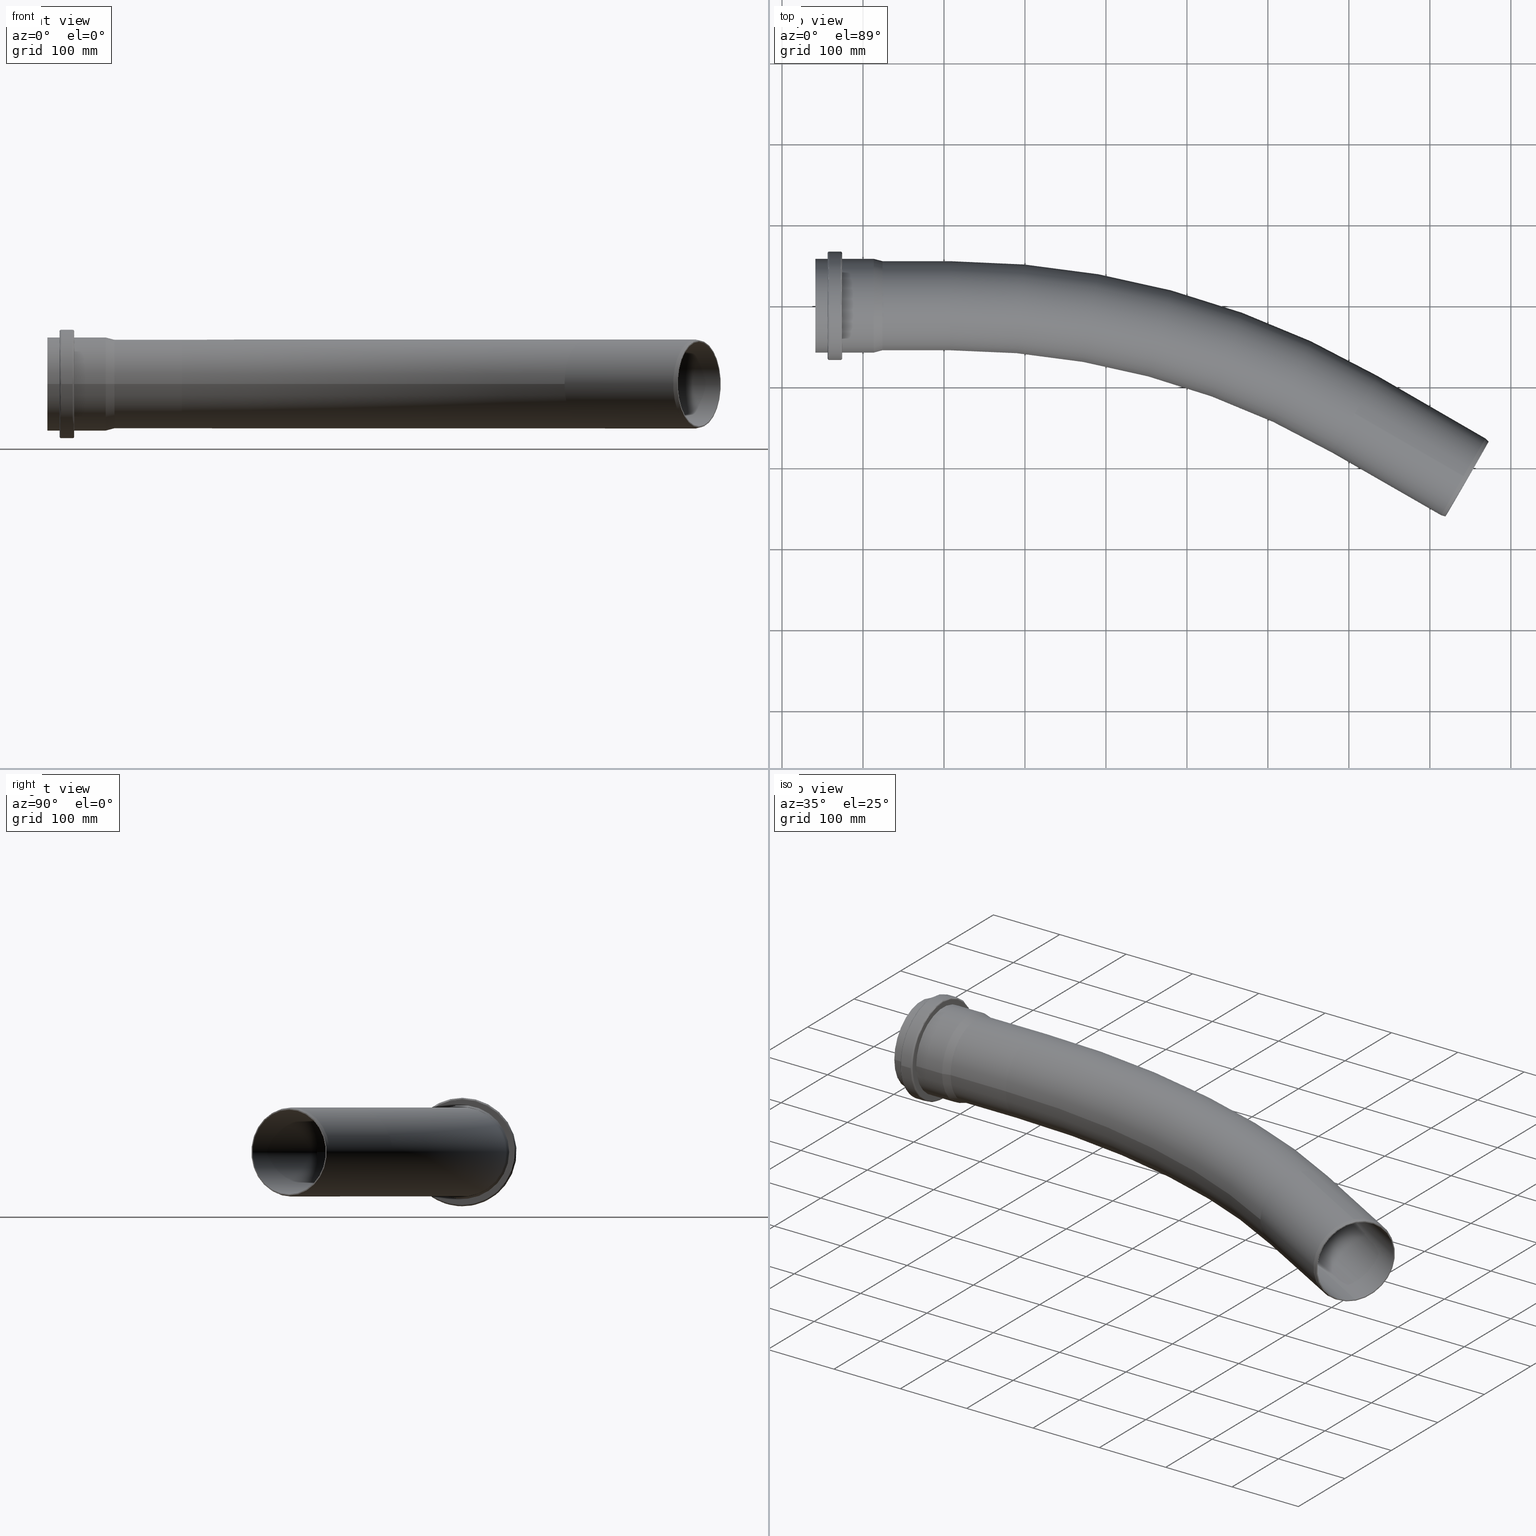
[diagram: canonical four-view strip — front | top / right | iso, engineering-drawing reading convention]
A machine part, canonical four-view strip (front | top / right | iso — engineering-drawing reading convention). The complete STEP part file that produces these views, byte-faithful:
ISO-10303-21;
HEADER;
/* Generated by software containing ST-Developer
 * from STEP Tools, Inc. (www.steptools.com) 
 */

FILE_DESCRIPTION(
/* description */ (''),
/* implementation_level */ '2;1');

FILE_NAME(
/* name */ '730320z.stp',
/* time_stamp */ '2023-08-23T12:34:18+02:00',
/* author */ ('corinna'),
/* organization */ (''),
/* preprocessor_version */ 'ST-DEVELOPER v20',
/* originating_system */ 'Autodesk Inventor 2024',
/* authorisation */ '');

FILE_SCHEMA (('AUTOMOTIVE_DESIGN { 1 0 10303 214 3 1 1 }'));
ENDSEC;

DATA;
#10=MECHANICAL_DESIGN_GEOMETRIC_PRESENTATION_REPRESENTATION('',(#13),#643);
#11=SHAPE_REPRESENTATION_RELATIONSHIP('SRR','None',#650,#12);
#12=ADVANCED_BREP_SHAPE_REPRESENTATION('',(#14),#642);
#13=STYLED_ITEM('',(#660),#14);
#14=MANIFOLD_SOLID_BREP('Volumenk\X\F6rper2',#340);
#15=TOROIDAL_SURFACE('',#375,1000.,52.3);
#16=TOROIDAL_SURFACE('',#378,1000.,55.);
#17=TOROIDAL_SURFACE('',#381,65.,2.);
#18=TOROIDAL_SURFACE('',#391,65.,2.);
#19=FACE_BOUND('',#67,.T.);
#20=FACE_BOUND('',#74,.T.);
#21=FACE_BOUND('',#77,.T.);
#22=FACE_BOUND('',#79,.T.);
#23=FACE_BOUND('',#82,.T.);
#24=FACE_BOUND('',#91,.T.);
#25=PLANE('',#370);
#26=PLANE('',#389);
#27=PLANE('',#394);
#28=PLANE('',#396);
#29=PLANE('',#401);
#30=PLANE('',#415);
#31=CYLINDRICAL_SURFACE('',#367,55.);
#32=CYLINDRICAL_SURFACE('',#372,52.3);
#33=CYLINDRICAL_SURFACE('',#386,67.);
#34=CYLINDRICAL_SURFACE('',#399,64.3);
#35=CYLINDRICAL_SURFACE('',#403,55.2);
#36=CYLINDRICAL_SURFACE('',#407,52.3);
#37=CYLINDRICAL_SURFACE('',#408,55.2);
#38=CYLINDRICAL_SURFACE('',#410,57.9);
#39=CYLINDRICAL_SURFACE('',#414,55.);
#40=CYLINDRICAL_SURFACE('',#417,57.9);
#41=FACE_OUTER_BOUND('',#64,.T.);
#42=FACE_OUTER_BOUND('',#65,.T.);
#43=FACE_OUTER_BOUND('',#66,.T.);
#44=FACE_OUTER_BOUND('',#68,.T.);
#45=FACE_OUTER_BOUND('',#69,.T.);
#46=FACE_OUTER_BOUND('',#70,.T.);
#47=FACE_OUTER_BOUND('',#71,.T.);
#48=FACE_OUTER_BOUND('',#72,.T.);
#49=FACE_OUTER_BOUND('',#73,.T.);
#50=FACE_OUTER_BOUND('',#75,.T.);
#51=FACE_OUTER_BOUND('',#76,.T.);
#52=FACE_OUTER_BOUND('',#78,.T.);
#53=FACE_OUTER_BOUND('',#80,.T.);
#54=FACE_OUTER_BOUND('',#81,.T.);
#55=FACE_OUTER_BOUND('',#83,.T.);
#56=FACE_OUTER_BOUND('',#84,.T.);
#57=FACE_OUTER_BOUND('',#85,.T.);
#58=FACE_OUTER_BOUND('',#86,.T.);
#59=FACE_OUTER_BOUND('',#87,.T.);
#60=FACE_OUTER_BOUND('',#88,.T.);
#61=FACE_OUTER_BOUND('',#89,.T.);
#62=FACE_OUTER_BOUND('',#90,.T.);
#63=FACE_OUTER_BOUND('',#92,.T.);
#64=EDGE_LOOP('',(#224,#225,#226,#227,#228));
#65=EDGE_LOOP('',(#229,#230,#231,#232,#233,#234));
#66=EDGE_LOOP('',(#235));
#67=EDGE_LOOP('',(#236));
#68=EDGE_LOOP('',(#237,#238,#239,#240,#241));
#69=EDGE_LOOP('',(#242,#243,#244,#245,#246));
#70=EDGE_LOOP('',(#247,#248,#249,#250,#251));
#71=EDGE_LOOP('',(#252,#253,#254,#255,#256));
#72=EDGE_LOOP('',(#257,#258,#259,#260,#261,#262));
#73=EDGE_LOOP('',(#263));
#74=EDGE_LOOP('',(#264));
#75=EDGE_LOOP('',(#265,#266,#267,#268,#269));
#76=EDGE_LOOP('',(#270));
#77=EDGE_LOOP('',(#271));
#78=EDGE_LOOP('',(#272));
#79=EDGE_LOOP('',(#273));
#80=EDGE_LOOP('',(#274,#275,#276,#277));
#81=EDGE_LOOP('',(#278));
#82=EDGE_LOOP('',(#279));
#83=EDGE_LOOP('',(#280,#281,#282,#283));
#84=EDGE_LOOP('',(#284,#285,#286,#287));
#85=EDGE_LOOP('',(#288,#289,#290,#291));
#86=EDGE_LOOP('',(#292,#293,#294,#295));
#87=EDGE_LOOP('',(#296,#297,#298,#299));
#88=EDGE_LOOP('',(#300,#301,#302,#303));
#89=EDGE_LOOP('',(#304,#305,#306,#307));
#90=EDGE_LOOP('',(#308));
#91=EDGE_LOOP('',(#309));
#92=EDGE_LOOP('',(#310,#311,#312,#313));
#93=LINE('',#549,#106);
#94=LINE('',#554,#107);
#95=LINE('',#566,#108);
#96=LINE('',#585,#109);
#97=LINE('',#606,#110);
#98=LINE('',#613,#111);
#99=LINE('',#618,#112);
#100=LINE('',#620,#113);
#101=LINE('',#624,#114);
#102=LINE('',#628,#115);
#103=LINE('',#631,#116);
#104=LINE('',#634,#117);
#105=LINE('',#639,#118);
#106=VECTOR('',#424,54.3301270189222);
#107=VECTOR('',#431,55.);
#108=VECTOR('',#446,52.3);
#109=VECTOR('',#471,67.);
#110=VECTOR('',#498,64.3);
#111=VECTOR('',#507,55.2);
#112=VECTOR('',#514,53.8420002690195);
#113=VECTOR('',#517,52.3);
#114=VECTOR('',#522,55.2);
#115=VECTOR('',#527,57.9);
#116=VECTOR('',#530,56.45);
#117=VECTOR('',#535,55.);
#118=VECTOR('',#542,57.9);
#119=CIRCLE('',#364,55.);
#120=CIRCLE('',#365,53.6602540378444);
#121=CIRCLE('',#366,55.);
#122=CIRCLE('',#368,55.);
#123=CIRCLE('',#369,55.);
#124=CIRCLE('',#371,52.3);
#125=CIRCLE('',#373,52.3);
#126=CIRCLE('',#374,52.3);
#127=CIRCLE('',#376,52.3);
#128=CIRCLE('',#377,947.7);
#129=CIRCLE('',#379,945.);
#130=CIRCLE('',#380,55.);
#131=CIRCLE('',#382,65.);
#132=CIRCLE('',#383,2.);
#133=CIRCLE('',#384,67.);
#134=CIRCLE('',#385,67.);
#135=CIRCLE('',#387,67.);
#136=CIRCLE('',#388,67.);
#137=CIRCLE('',#390,57.9);
#138=CIRCLE('',#392,2.);
#139=CIRCLE('',#393,65.);
#140=CIRCLE('',#395,57.9);
#141=CIRCLE('',#397,64.3);
#142=CIRCLE('',#398,55.2);
#143=CIRCLE('',#400,64.3);
#144=CIRCLE('',#402,55.2);
#145=CIRCLE('',#404,55.2);
#146=CIRCLE('',#406,52.3);
#147=CIRCLE('',#409,55.2);
#148=CIRCLE('',#411,57.9);
#149=CIRCLE('',#413,55.);
#150=CIRCLE('',#416,57.9);
#151=VERTEX_POINT('',#545);
#152=VERTEX_POINT('',#546);
#153=VERTEX_POINT('',#548);
#154=VERTEX_POINT('',#553);
#155=VERTEX_POINT('',#555);
#156=VERTEX_POINT('',#559);
#157=VERTEX_POINT('',#562);
#158=VERTEX_POINT('',#563);
#159=VERTEX_POINT('',#568);
#160=VERTEX_POINT('',#572);
#161=VERTEX_POINT('',#576);
#162=VERTEX_POINT('',#578);
#163=VERTEX_POINT('',#580);
#164=VERTEX_POINT('',#584);
#165=VERTEX_POINT('',#586);
#166=VERTEX_POINT('',#590);
#167=VERTEX_POINT('',#593);
#168=VERTEX_POINT('',#597);
#169=VERTEX_POINT('',#600);
#170=VERTEX_POINT('',#602);
#171=VERTEX_POINT('',#605);
#172=VERTEX_POINT('',#609);
#173=VERTEX_POINT('',#612);
#174=VERTEX_POINT('',#616);
#175=VERTEX_POINT('',#622);
#176=VERTEX_POINT('',#626);
#177=VERTEX_POINT('',#630);
#178=VERTEX_POINT('',#636);
#179=EDGE_CURVE('',#151,#152,#119,.T.);
#180=EDGE_CURVE('',#152,#153,#93,.T.);
#181=EDGE_CURVE('',#153,#153,#120,.T.);
#182=EDGE_CURVE('',#152,#151,#121,.T.);
#183=EDGE_CURVE('',#151,#154,#94,.T.);
#184=EDGE_CURVE('',#154,#155,#122,.T.);
#185=EDGE_CURVE('',#155,#154,#123,.T.);
#186=EDGE_CURVE('',#156,#156,#124,.T.);
#187=EDGE_CURVE('',#157,#158,#125,.T.);
#188=EDGE_CURVE('',#158,#157,#126,.T.);
#189=EDGE_CURVE('',#158,#156,#95,.T.);
#190=EDGE_CURVE('',#159,#159,#127,.T.);
#191=EDGE_CURVE('',#159,#157,#128,.T.);
#192=EDGE_CURVE('',#155,#160,#129,.T.);
#193=EDGE_CURVE('',#160,#160,#130,.T.);
#194=EDGE_CURVE('',#161,#161,#131,.T.);
#195=EDGE_CURVE('',#161,#162,#132,.T.);
#196=EDGE_CURVE('',#162,#163,#133,.T.);
#197=EDGE_CURVE('',#163,#162,#134,.T.);
#198=EDGE_CURVE('',#163,#164,#96,.T.);
#199=EDGE_CURVE('',#165,#164,#135,.T.);
#200=EDGE_CURVE('',#164,#165,#136,.T.);
#201=EDGE_CURVE('',#166,#166,#137,.T.);
#202=EDGE_CURVE('',#165,#167,#138,.T.);
#203=EDGE_CURVE('',#167,#167,#139,.T.);
#204=EDGE_CURVE('',#168,#168,#140,.T.);
#205=EDGE_CURVE('',#169,#169,#141,.F.);
#206=EDGE_CURVE('',#170,#170,#142,.F.);
#207=EDGE_CURVE('',#169,#171,#97,.T.);
#208=EDGE_CURVE('',#171,#171,#143,.F.);
#209=EDGE_CURVE('',#172,#172,#144,.T.);
#210=EDGE_CURVE('',#172,#173,#98,.T.);
#211=EDGE_CURVE('',#173,#173,#145,.F.);
#212=EDGE_CURVE('',#174,#174,#146,.T.);
#213=EDGE_CURVE('',#174,#173,#99,.T.);
#214=EDGE_CURVE('',#174,#159,#100,.T.);
#215=EDGE_CURVE('',#175,#175,#147,.T.);
#216=EDGE_CURVE('',#175,#170,#101,.T.);
#217=EDGE_CURVE('',#176,#176,#148,.T.);
#218=EDGE_CURVE('',#176,#166,#102,.T.);
#219=EDGE_CURVE('',#176,#177,#103,.T.);
#220=EDGE_CURVE('',#177,#177,#149,.T.);
#221=EDGE_CURVE('',#160,#177,#104,.T.);
#222=EDGE_CURVE('',#178,#178,#150,.T.);
#223=EDGE_CURVE('',#168,#178,#105,.T.);
#224=ORIENTED_EDGE('',*,*,#179,.T.);
#225=ORIENTED_EDGE('',*,*,#180,.T.);
#226=ORIENTED_EDGE('',*,*,#181,.T.);
#227=ORIENTED_EDGE('',*,*,#180,.F.);
#228=ORIENTED_EDGE('',*,*,#182,.T.);
#229=ORIENTED_EDGE('',*,*,#179,.F.);
#230=ORIENTED_EDGE('',*,*,#183,.T.);
#231=ORIENTED_EDGE('',*,*,#184,.T.);
#232=ORIENTED_EDGE('',*,*,#185,.T.);
#233=ORIENTED_EDGE('',*,*,#183,.F.);
#234=ORIENTED_EDGE('',*,*,#182,.F.);
#235=ORIENTED_EDGE('',*,*,#181,.F.);
#236=ORIENTED_EDGE('',*,*,#186,.T.);
#237=ORIENTED_EDGE('',*,*,#187,.F.);
#238=ORIENTED_EDGE('',*,*,#188,.F.);
#239=ORIENTED_EDGE('',*,*,#189,.T.);
#240=ORIENTED_EDGE('',*,*,#186,.F.);
#241=ORIENTED_EDGE('',*,*,#189,.F.);
#242=ORIENTED_EDGE('',*,*,#190,.T.);
#243=ORIENTED_EDGE('',*,*,#191,.T.);
#244=ORIENTED_EDGE('',*,*,#187,.T.);
#245=ORIENTED_EDGE('',*,*,#188,.T.);
#246=ORIENTED_EDGE('',*,*,#191,.F.);
#247=ORIENTED_EDGE('',*,*,#185,.F.);
#248=ORIENTED_EDGE('',*,*,#192,.T.);
#249=ORIENTED_EDGE('',*,*,#193,.T.);
#250=ORIENTED_EDGE('',*,*,#192,.F.);
#251=ORIENTED_EDGE('',*,*,#184,.F.);
#252=ORIENTED_EDGE('',*,*,#194,.T.);
#253=ORIENTED_EDGE('',*,*,#195,.T.);
#254=ORIENTED_EDGE('',*,*,#196,.T.);
#255=ORIENTED_EDGE('',*,*,#197,.T.);
#256=ORIENTED_EDGE('',*,*,#195,.F.);
#257=ORIENTED_EDGE('',*,*,#197,.F.);
#258=ORIENTED_EDGE('',*,*,#198,.T.);
#259=ORIENTED_EDGE('',*,*,#199,.F.);
#260=ORIENTED_EDGE('',*,*,#200,.F.);
#261=ORIENTED_EDGE('',*,*,#198,.F.);
#262=ORIENTED_EDGE('',*,*,#196,.F.);
#263=ORIENTED_EDGE('',*,*,#194,.F.);
#264=ORIENTED_EDGE('',*,*,#201,.F.);
#265=ORIENTED_EDGE('',*,*,#199,.T.);
#266=ORIENTED_EDGE('',*,*,#200,.T.);
#267=ORIENTED_EDGE('',*,*,#202,.T.);
#268=ORIENTED_EDGE('',*,*,#203,.T.);
#269=ORIENTED_EDGE('',*,*,#202,.F.);
#270=ORIENTED_EDGE('',*,*,#203,.F.);
#271=ORIENTED_EDGE('',*,*,#204,.T.);
#272=ORIENTED_EDGE('',*,*,#205,.T.);
#273=ORIENTED_EDGE('',*,*,#206,.F.);
#274=ORIENTED_EDGE('',*,*,#205,.F.);
#275=ORIENTED_EDGE('',*,*,#207,.T.);
#276=ORIENTED_EDGE('',*,*,#208,.T.);
#277=ORIENTED_EDGE('',*,*,#207,.F.);
#278=ORIENTED_EDGE('',*,*,#208,.F.);
#279=ORIENTED_EDGE('',*,*,#209,.T.);
#280=ORIENTED_EDGE('',*,*,#209,.F.);
#281=ORIENTED_EDGE('',*,*,#210,.T.);
#282=ORIENTED_EDGE('',*,*,#211,.T.);
#283=ORIENTED_EDGE('',*,*,#210,.F.);
#284=ORIENTED_EDGE('',*,*,#212,.T.);
#285=ORIENTED_EDGE('',*,*,#213,.T.);
#286=ORIENTED_EDGE('',*,*,#211,.F.);
#287=ORIENTED_EDGE('',*,*,#213,.F.);
#288=ORIENTED_EDGE('',*,*,#212,.F.);
#289=ORIENTED_EDGE('',*,*,#214,.T.);
#290=ORIENTED_EDGE('',*,*,#190,.F.);
#291=ORIENTED_EDGE('',*,*,#214,.F.);
#292=ORIENTED_EDGE('',*,*,#215,.F.);
#293=ORIENTED_EDGE('',*,*,#216,.T.);
#294=ORIENTED_EDGE('',*,*,#206,.T.);
#295=ORIENTED_EDGE('',*,*,#216,.F.);
#296=ORIENTED_EDGE('',*,*,#217,.F.);
#297=ORIENTED_EDGE('',*,*,#218,.T.);
#298=ORIENTED_EDGE('',*,*,#201,.T.);
#299=ORIENTED_EDGE('',*,*,#218,.F.);
#300=ORIENTED_EDGE('',*,*,#217,.T.);
#301=ORIENTED_EDGE('',*,*,#219,.T.);
#302=ORIENTED_EDGE('',*,*,#220,.F.);
#303=ORIENTED_EDGE('',*,*,#219,.F.);
#304=ORIENTED_EDGE('',*,*,#193,.F.);
#305=ORIENTED_EDGE('',*,*,#221,.T.);
#306=ORIENTED_EDGE('',*,*,#220,.T.);
#307=ORIENTED_EDGE('',*,*,#221,.F.);
#308=ORIENTED_EDGE('',*,*,#222,.F.);
#309=ORIENTED_EDGE('',*,*,#215,.T.);
#310=ORIENTED_EDGE('',*,*,#204,.F.);
#311=ORIENTED_EDGE('',*,*,#223,.T.);
#312=ORIENTED_EDGE('',*,*,#222,.T.);
#313=ORIENTED_EDGE('',*,*,#223,.F.);
#314=CONICAL_SURFACE('',#363,54.3301270189222,0.261799387799149);
#315=CONICAL_SURFACE('',#405,53.8420002690195,0.261799387799149);
#316=CONICAL_SURFACE('',#412,56.45,0.261799387799149);
#317=ADVANCED_FACE('',(#41),#314,.T.);
#318=ADVANCED_FACE('',(#42),#31,.T.);
#319=ADVANCED_FACE('',(#43,#19),#25,.T.);
#320=ADVANCED_FACE('',(#44),#32,.F.);
#321=ADVANCED_FACE('',(#45),#15,.F.);
#322=ADVANCED_FACE('',(#46),#16,.T.);
#323=ADVANCED_FACE('',(#47),#17,.T.);
#324=ADVANCED_FACE('',(#48),#33,.T.);
#325=ADVANCED_FACE('',(#49,#20),#26,.T.);
#326=ADVANCED_FACE('',(#50),#18,.T.);
#327=ADVANCED_FACE('',(#51,#21),#27,.T.);
#328=ADVANCED_FACE('',(#52,#22),#28,.F.);
#329=ADVANCED_FACE('',(#53),#34,.F.);
#330=ADVANCED_FACE('',(#54,#23),#29,.F.);
#331=ADVANCED_FACE('',(#55),#35,.F.);
#332=ADVANCED_FACE('',(#56),#315,.F.);
#333=ADVANCED_FACE('',(#57),#36,.F.);
#334=ADVANCED_FACE('',(#58),#37,.F.);
#335=ADVANCED_FACE('',(#59),#38,.T.);
#336=ADVANCED_FACE('',(#60),#316,.T.);
#337=ADVANCED_FACE('',(#61),#39,.T.);
#338=ADVANCED_FACE('',(#62,#24),#30,.T.);
#339=ADVANCED_FACE('',(#63),#40,.T.);
#340=CLOSED_SHELL('',(#317,#318,#319,#320,#321,#322,#323,#324,#325,#326,
#327,#328,#329,#330,#331,#332,#333,#334,#335,#336,#337,#338,#339));
#341=DERIVED_UNIT_ELEMENT(#344,1.);
#342=DERIVED_UNIT_ELEMENT(#645,-3.);
#343=DIMENSIONAL_EXPONENTS(0.,1.,0.,0.,0.,0.,0.);
#344=(
CONVERSION_BASED_UNIT('gram',#346)
MASS_UNIT()
NAMED_UNIT(#343)
);
#345=(
MASS_UNIT()
NAMED_UNIT(*)
SI_UNIT(.KILO.,.GRAM.)
);
#346=MASS_MEASURE_WITH_UNIT(MASS_MEASURE(0.001),#345);
#347=DERIVED_UNIT((#341,#342));
#348=MEASURE_REPRESENTATION_ITEM('density measure',
POSITIVE_RATIO_MEASURE(1.),#347);
#349=PROPERTY_DEFINITION_REPRESENTATION(#354,#351);
#350=PROPERTY_DEFINITION_REPRESENTATION(#355,#352);
#351=REPRESENTATION('material name',(#353),#642);
#352=REPRESENTATION('density',(#348),#642);
#353=DESCRIPTIVE_REPRESENTATION_ITEM('Generisch','Generisch');
#354=PROPERTY_DEFINITION('material property','material name',#652);
#355=PROPERTY_DEFINITION('material property','density of part',#652);
#356=DATE_TIME_ROLE('creation_date');
#357=APPLIED_DATE_AND_TIME_ASSIGNMENT(#358,#356,(#652));
#358=DATE_AND_TIME(#359,#360);
#359=CALENDAR_DATE(2023,16,8);
#360=LOCAL_TIME(11,56,2.,#361);
#361=COORDINATED_UNIVERSAL_TIME_OFFSET(0,0,.BEHIND.);
#362=AXIS2_PLACEMENT_3D('',#543,#418,#419);
#363=AXIS2_PLACEMENT_3D('',#544,#420,#421);
#364=AXIS2_PLACEMENT_3D('',#547,#422,#423);
#365=AXIS2_PLACEMENT_3D('',#550,#425,#426);
#366=AXIS2_PLACEMENT_3D('',#551,#427,#428);
#367=AXIS2_PLACEMENT_3D('',#552,#429,#430);
#368=AXIS2_PLACEMENT_3D('',#556,#432,#433);
#369=AXIS2_PLACEMENT_3D('',#557,#434,#435);
#370=AXIS2_PLACEMENT_3D('',#558,#436,#437);
#371=AXIS2_PLACEMENT_3D('',#560,#438,#439);
#372=AXIS2_PLACEMENT_3D('',#561,#440,#441);
#373=AXIS2_PLACEMENT_3D('',#564,#442,#443);
#374=AXIS2_PLACEMENT_3D('',#565,#444,#445);
#375=AXIS2_PLACEMENT_3D('',#567,#447,#448);
#376=AXIS2_PLACEMENT_3D('',#569,#449,#450);
#377=AXIS2_PLACEMENT_3D('',#570,#451,#452);
#378=AXIS2_PLACEMENT_3D('',#571,#453,#454);
#379=AXIS2_PLACEMENT_3D('',#573,#455,#456);
#380=AXIS2_PLACEMENT_3D('',#574,#457,#458);
#381=AXIS2_PLACEMENT_3D('',#575,#459,#460);
#382=AXIS2_PLACEMENT_3D('',#577,#461,#462);
#383=AXIS2_PLACEMENT_3D('',#579,#463,#464);
#384=AXIS2_PLACEMENT_3D('',#581,#465,#466);
#385=AXIS2_PLACEMENT_3D('',#582,#467,#468);
#386=AXIS2_PLACEMENT_3D('',#583,#469,#470);
#387=AXIS2_PLACEMENT_3D('',#587,#472,#473);
#388=AXIS2_PLACEMENT_3D('',#588,#474,#475);
#389=AXIS2_PLACEMENT_3D('',#589,#476,#477);
#390=AXIS2_PLACEMENT_3D('',#591,#478,#479);
#391=AXIS2_PLACEMENT_3D('',#592,#480,#481);
#392=AXIS2_PLACEMENT_3D('',#594,#482,#483);
#393=AXIS2_PLACEMENT_3D('',#595,#484,#485);
#394=AXIS2_PLACEMENT_3D('',#596,#486,#487);
#395=AXIS2_PLACEMENT_3D('',#598,#488,#489);
#396=AXIS2_PLACEMENT_3D('',#599,#490,#491);
#397=AXIS2_PLACEMENT_3D('',#601,#492,#493);
#398=AXIS2_PLACEMENT_3D('',#603,#494,#495);
#399=AXIS2_PLACEMENT_3D('',#604,#496,#497);
#400=AXIS2_PLACEMENT_3D('',#607,#499,#500);
#401=AXIS2_PLACEMENT_3D('',#608,#501,#502);
#402=AXIS2_PLACEMENT_3D('',#610,#503,#504);
#403=AXIS2_PLACEMENT_3D('',#611,#505,#506);
#404=AXIS2_PLACEMENT_3D('',#614,#508,#509);
#405=AXIS2_PLACEMENT_3D('',#615,#510,#511);
#406=AXIS2_PLACEMENT_3D('',#617,#512,#513);
#407=AXIS2_PLACEMENT_3D('',#619,#515,#516);
#408=AXIS2_PLACEMENT_3D('',#621,#518,#519);
#409=AXIS2_PLACEMENT_3D('',#623,#520,#521);
#410=AXIS2_PLACEMENT_3D('',#625,#523,#524);
#411=AXIS2_PLACEMENT_3D('',#627,#525,#526);
#412=AXIS2_PLACEMENT_3D('',#629,#528,#529);
#413=AXIS2_PLACEMENT_3D('',#632,#531,#532);
#414=AXIS2_PLACEMENT_3D('',#633,#533,#534);
#415=AXIS2_PLACEMENT_3D('',#635,#536,#537);
#416=AXIS2_PLACEMENT_3D('',#637,#538,#539);
#417=AXIS2_PLACEMENT_3D('',#638,#540,#541);
#418=DIRECTION('axis',(0.,0.,1.));
#419=DIRECTION('refdir',(1.,0.,0.));
#420=DIRECTION('center_axis',(-0.866025403784438,0.500000000000001,0.));
#421=DIRECTION('ref_axis',(0.,0.,1.));
#422=DIRECTION('center_axis',(0.866025403784439,-0.5,0.));
#423=DIRECTION('ref_axis',(0.,0.,1.));
#424=DIRECTION('',(0.836516303737807,-0.482962913144535,0.25881904510252));
#425=DIRECTION('center_axis',(-0.866025403784439,0.5,0.));
#426=DIRECTION('ref_axis',(0.,0.,1.));
#427=DIRECTION('center_axis',(0.866025403784439,-0.5,0.));
#428=DIRECTION('ref_axis',(0.,0.,1.));
#429=DIRECTION('center_axis',(0.866025403784439,-0.499999999999999,0.));
#430=DIRECTION('ref_axis',(0.,0.,-1.));
#431=DIRECTION('',(-0.866025403784439,0.499999999999999,0.));
#432=DIRECTION('center_axis',(0.866025403784439,-0.5,0.));
#433=DIRECTION('ref_axis',(0.,0.,-1.));
#434=DIRECTION('center_axis',(0.866025403784439,-0.5,0.));
#435=DIRECTION('ref_axis',(0.,0.,-1.));
#436=DIRECTION('center_axis',(0.866025403784439,-0.5,0.));
#437=DIRECTION('ref_axis',(0.,0.,-1.));
#438=DIRECTION('center_axis',(-0.866025403784439,0.5,0.));
#439=DIRECTION('ref_axis',(0.,0.,1.));
#440=DIRECTION('center_axis',(0.866025403784439,-0.499999999999999,0.));
#441=DIRECTION('ref_axis',(0.,0.,1.));
#442=DIRECTION('center_axis',(0.866025403784439,-0.5,0.));
#443=DIRECTION('ref_axis',(0.,0.,1.));
#444=DIRECTION('center_axis',(0.866025403784439,-0.5,0.));
#445=DIRECTION('ref_axis',(0.,0.,1.));
#446=DIRECTION('',(0.866025403784439,-0.499999999999999,0.));
#447=DIRECTION('center_axis',(0.,0.,-1.));
#448=DIRECTION('ref_axis',(-1.,0.,0.));
#449=DIRECTION('center_axis',(-1.,0.,0.));
#450=DIRECTION('ref_axis',(0.,1.,0.));
#451=DIRECTION('center_axis',(0.,0.,-1.));
#452=DIRECTION('ref_axis',(-1.,0.,0.));
#453=DIRECTION('center_axis',(0.,0.,-1.));
#454=DIRECTION('ref_axis',(-1.,0.,0.));
#455=DIRECTION('center_axis',(0.,0.,1.));
#456=DIRECTION('ref_axis',(-1.,0.,0.));
#457=DIRECTION('center_axis',(1.,0.,0.));
#458=DIRECTION('ref_axis',(0.,0.,-1.));
#459=DIRECTION('center_axis',(1.,0.,0.));
#460=DIRECTION('ref_axis',(0.,0.,-1.));
#461=DIRECTION('center_axis',(-1.,0.,0.));
#462=DIRECTION('ref_axis',(0.,-1.,1.83697019872103E-16));
#463=DIRECTION('center_axis',(0.,-1.,-1.22464679914735E-16));
#464=DIRECTION('ref_axis',(0.,-1.22464679914735E-16,1.));
#465=DIRECTION('center_axis',(1.,0.,0.));
#466=DIRECTION('ref_axis',(0.,-1.,1.83697019872103E-16));
#467=DIRECTION('center_axis',(1.,0.,0.));
#468=DIRECTION('ref_axis',(0.,-1.,1.83697019872103E-16));
#469=DIRECTION('center_axis',(1.,0.,0.));
#470=DIRECTION('ref_axis',(0.,1.,0.));
#471=DIRECTION('',(-1.,0.,0.));
#472=DIRECTION('center_axis',(-1.,0.,0.));
#473=DIRECTION('ref_axis',(0.,-1.,1.83697019872103E-16));
#474=DIRECTION('center_axis',(-1.,0.,0.));
#475=DIRECTION('ref_axis',(0.,-1.,1.83697019872103E-16));
#476=DIRECTION('center_axis',(1.,0.,0.));
#477=DIRECTION('ref_axis',(0.,0.,-1.));
#478=DIRECTION('center_axis',(1.,0.,0.));
#479=DIRECTION('ref_axis',(0.,0.,-1.));
#480=DIRECTION('center_axis',(1.,0.,0.));
#481=DIRECTION('ref_axis',(0.,0.,-1.));
#482=DIRECTION('center_axis',(0.,-1.,-1.22464679914735E-16));
#483=DIRECTION('ref_axis',(0.,-1.22464679914735E-16,1.));
#484=DIRECTION('center_axis',(1.,0.,0.));
#485=DIRECTION('ref_axis',(0.,-1.,1.83697019872103E-16));
#486=DIRECTION('center_axis',(-1.,0.,0.));
#487=DIRECTION('ref_axis',(0.,0.,1.));
#488=DIRECTION('center_axis',(1.,0.,0.));
#489=DIRECTION('ref_axis',(0.,0.,-1.));
#490=DIRECTION('center_axis',(-1.,0.,0.));
#491=DIRECTION('ref_axis',(0.,0.,1.));
#492=DIRECTION('center_axis',(-1.,0.,0.));
#493=DIRECTION('ref_axis',(0.,1.,0.));
#494=DIRECTION('center_axis',(-1.,0.,0.));
#495=DIRECTION('ref_axis',(0.,1.,0.));
#496=DIRECTION('center_axis',(1.,0.,0.));
#497=DIRECTION('ref_axis',(0.,1.,0.));
#498=DIRECTION('',(1.,0.,0.));
#499=DIRECTION('center_axis',(-1.,0.,0.));
#500=DIRECTION('ref_axis',(0.,1.,0.));
#501=DIRECTION('center_axis',(1.,0.,0.));
#502=DIRECTION('ref_axis',(0.,0.,-1.));
#503=DIRECTION('center_axis',(1.,0.,0.));
#504=DIRECTION('ref_axis',(0.,1.,0.));
#505=DIRECTION('center_axis',(1.,0.,0.));
#506=DIRECTION('ref_axis',(0.,1.,0.));
#507=DIRECTION('',(1.,0.,0.));
#508=DIRECTION('center_axis',(-1.,0.,0.));
#509=DIRECTION('ref_axis',(0.,1.,0.));
#510=DIRECTION('center_axis',(-1.,0.,0.));
#511=DIRECTION('ref_axis',(0.,1.,0.));
#512=DIRECTION('center_axis',(1.,0.,0.));
#513=DIRECTION('ref_axis',(0.,1.,0.));
#514=DIRECTION('',(-0.965925826289068,-0.25881904510252,3.16961915143176E-17));
#515=DIRECTION('center_axis',(1.,0.,0.));
#516=DIRECTION('ref_axis',(0.,1.,0.));
#517=DIRECTION('',(1.,0.,0.));
#518=DIRECTION('center_axis',(1.,0.,0.));
#519=DIRECTION('ref_axis',(0.,1.,0.));
#520=DIRECTION('center_axis',(1.,0.,0.));
#521=DIRECTION('ref_axis',(0.,1.,0.));
#522=DIRECTION('',(1.,0.,0.));
#523=DIRECTION('center_axis',(1.,0.,0.));
#524=DIRECTION('ref_axis',(0.,1.,0.));
#525=DIRECTION('center_axis',(1.,0.,0.));
#526=DIRECTION('ref_axis',(0.,0.,-1.));
#527=DIRECTION('',(-1.,0.,0.));
#528=DIRECTION('center_axis',(-1.,0.,0.));
#529=DIRECTION('ref_axis',(0.,1.,0.));
#530=DIRECTION('',(0.965925826289068,0.25881904510252,-3.16961915143176E-17));
#531=DIRECTION('center_axis',(1.,0.,0.));
#532=DIRECTION('ref_axis',(0.,0.,-1.));
#533=DIRECTION('center_axis',(1.,0.,0.));
#534=DIRECTION('ref_axis',(0.,1.,0.));
#535=DIRECTION('',(-1.,0.,0.));
#536=DIRECTION('center_axis',(-1.,0.,0.));
#537=DIRECTION('ref_axis',(0.,0.,1.));
#538=DIRECTION('center_axis',(1.,0.,0.));
#539=DIRECTION('ref_axis',(0.,0.,-1.));
#540=DIRECTION('center_axis',(1.,0.,0.));
#541=DIRECTION('ref_axis',(0.,1.,0.));
#542=DIRECTION('',(-1.,0.,0.));
#543=CARTESIAN_POINT('',(0.,0.,0.));
#544=CARTESIAN_POINT('Origin',(643.674001096049,-212.724596215561,0.));
#545=CARTESIAN_POINT('',(641.508937586588,-211.474596215561,55.));
#546=CARTESIAN_POINT('',(641.508937586588,-211.474596215561,-55.));
#547=CARTESIAN_POINT('Origin',(641.508937586588,-211.474596215561,0.));
#548=CARTESIAN_POINT('',(645.83906460551,-213.974596215561,-53.6602540378444));
#549=CARTESIAN_POINT('',(643.674001096049,-212.724596215561,-54.3301270189222));
#550=CARTESIAN_POINT('Origin',(645.83906460551,-213.974596215561,0.));
#551=CARTESIAN_POINT('Origin',(641.508937586588,-211.474596215561,0.));
#552=CARTESIAN_POINT('Origin',(507.275,-133.974596215561,0.));
#553=CARTESIAN_POINT('',(507.275,-133.974596215561,55.));
#554=CARTESIAN_POINT('',(507.275,-133.974596215561,55.));
#555=CARTESIAN_POINT('',(479.775,-181.605993423705,6.73555739531044E-15));
#556=CARTESIAN_POINT('Origin',(507.275,-133.974596215561,0.));
#557=CARTESIAN_POINT('Origin',(507.275,-133.974596215561,0.));
#558=CARTESIAN_POINT('Origin',(645.83906460551,-213.974596215561,0.));
#559=CARTESIAN_POINT('',(645.83906460551,-213.974596215561,-52.3));
#560=CARTESIAN_POINT('Origin',(645.83906460551,-213.974596215561,0.));
#561=CARTESIAN_POINT('Origin',(507.275,-133.974596215561,0.));
#562=CARTESIAN_POINT('',(481.125,-179.267724833487,6.40490275954066E-15));
#563=CARTESIAN_POINT('',(507.275,-133.974596215561,-52.3));
#564=CARTESIAN_POINT('Origin',(507.275,-133.974596215561,0.));
#565=CARTESIAN_POINT('Origin',(507.275,-133.974596215561,0.));
#566=CARTESIAN_POINT('',(507.275,-133.974596215561,-52.3));
#567=CARTESIAN_POINT('Origin',(7.27500000000015,-1000.,0.));
#568=CARTESIAN_POINT('',(7.27500000000004,-52.3,6.40490275954066E-15));
#569=CARTESIAN_POINT('Origin',(7.27500000000004,0.,0.));
#570=CARTESIAN_POINT('Origin',(7.27500000000015,-1000.,6.40490275954066E-15));
#571=CARTESIAN_POINT('Origin',(7.27500000000015,-1000.,0.));
#572=CARTESIAN_POINT('',(7.27500000000003,-55.,6.73555739531044E-15));
#573=CARTESIAN_POINT('Origin',(7.27500000000015,-1000.,6.73555739531044E-15));
#574=CARTESIAN_POINT('Origin',(7.27500000000003,0.,0.));
#575=CARTESIAN_POINT('Origin',(-127.725,0.,0.));
#576=CARTESIAN_POINT('',(-125.725,-7.9602041944578E-15,65.));
#577=CARTESIAN_POINT('Origin',(-125.725,0.,0.));
#578=CARTESIAN_POINT('',(-127.725,-8.20513355428727E-15,67.));
#579=CARTESIAN_POINT('Origin',(-127.725,-7.9602041944578E-15,65.));
#580=CARTESIAN_POINT('',(-127.725,-67.,-8.20513355428727E-15));
#581=CARTESIAN_POINT('Origin',(-127.725,0.,0.));
#582=CARTESIAN_POINT('Origin',(-127.725,0.,0.));
#583=CARTESIAN_POINT('Origin',(-134.725,0.,0.));
#584=CARTESIAN_POINT('',(-141.725,-67.,-8.20513355428727E-15));
#585=CARTESIAN_POINT('',(-134.725,-67.,-8.20513355428727E-15));
#586=CARTESIAN_POINT('',(-141.725,-8.20513355428727E-15,67.));
#587=CARTESIAN_POINT('Origin',(-141.725,0.,0.));
#588=CARTESIAN_POINT('Origin',(-141.725,0.,0.));
#589=CARTESIAN_POINT('Origin',(-125.725,57.9,0.));
#590=CARTESIAN_POINT('',(-125.725,-57.9,-7.09070496706317E-15));
#591=CARTESIAN_POINT('Origin',(-125.725,0.,0.));
#592=CARTESIAN_POINT('Origin',(-141.725,0.,0.));
#593=CARTESIAN_POINT('',(-143.725,-7.9602041944578E-15,65.));
#594=CARTESIAN_POINT('Origin',(-141.725,-7.9602041944578E-15,65.));
#595=CARTESIAN_POINT('Origin',(-143.725,0.,0.));
#596=CARTESIAN_POINT('Origin',(-143.725,67.,0.));
#597=CARTESIAN_POINT('',(-143.725,-57.9,-7.09070496706317E-15));
#598=CARTESIAN_POINT('Origin',(-143.725,0.,0.));
#599=CARTESIAN_POINT('Origin',(-141.025,67.,0.));
#600=CARTESIAN_POINT('',(-141.025,-64.3,7.87447891851748E-15));
#601=CARTESIAN_POINT('Origin',(-141.025,0.,0.));
#602=CARTESIAN_POINT('',(-141.025,-55.2,6.76005033129339E-15));
#603=CARTESIAN_POINT('Origin',(-141.025,0.,0.));
#604=CARTESIAN_POINT('Origin',(-134.725,0.,0.));
#605=CARTESIAN_POINT('',(-128.425,-64.3,7.87447891851748E-15));
#606=CARTESIAN_POINT('',(-134.725,-64.3,-7.87447891851748E-15));
#607=CARTESIAN_POINT('Origin',(-128.425,0.,0.));
#608=CARTESIAN_POINT('Origin',(-128.425,57.9,0.));
#609=CARTESIAN_POINT('',(-128.425,-55.2,-6.76005033129339E-15));
#610=CARTESIAN_POINT('Origin',(-128.425,0.,0.));
#611=CARTESIAN_POINT('Origin',(-106.225,0.,0.));
#612=CARTESIAN_POINT('',(-87.080461743486,-55.2,6.76005033129339E-15));
#613=CARTESIAN_POINT('',(-106.225,-55.2,-6.76005033129339E-15));
#614=CARTESIAN_POINT('Origin',(-87.080461743486,0.,0.));
#615=CARTESIAN_POINT('Origin',(-82.0123377508019,0.,0.));
#616=CARTESIAN_POINT('',(-76.2575144015362,-52.3,-6.40490275954066E-15));
#617=CARTESIAN_POINT('Origin',(-76.2575144015362,0.,0.));
#618=CARTESIAN_POINT('',(-82.0123377508019,-53.8420002690195,6.59374332891457E-15));
#619=CARTESIAN_POINT('Origin',(-34.3135263290251,0.,0.));
#620=CARTESIAN_POINT('',(-34.3135263290251,-52.3,-6.40490275954066E-15));
#621=CARTESIAN_POINT('Origin',(-151.225,0.,0.));
#622=CARTESIAN_POINT('',(-158.725,-55.2,-6.76005033129339E-15));
#623=CARTESIAN_POINT('Origin',(-158.725,0.,0.));
#624=CARTESIAN_POINT('',(-151.225,-55.2,-6.76005033129339E-15));
#625=CARTESIAN_POINT('Origin',(-106.225,0.,0.));
#626=CARTESIAN_POINT('',(-86.725,-57.9,-7.09070496706317E-15));
#627=CARTESIAN_POINT('Origin',(-86.725,0.,0.));
#628=CARTESIAN_POINT('',(-106.225,-57.9,-7.09070496706317E-15));
#629=CARTESIAN_POINT('Origin',(-81.3135263290251,0.,0.));
#630=CARTESIAN_POINT('',(-75.9020526580502,-55.,6.73555739531044E-15));
#631=CARTESIAN_POINT('',(-81.3135263290251,-56.45,6.91313118118681E-15));
#632=CARTESIAN_POINT('Origin',(-75.9020526580502,0.,0.));
#633=CARTESIAN_POINT('Origin',(-34.3135263290251,0.,0.));
#634=CARTESIAN_POINT('',(-34.3135263290251,-55.,-6.73555739531044E-15));
#635=CARTESIAN_POINT('Origin',(-158.725,57.9,0.));
#636=CARTESIAN_POINT('',(-158.725,-57.9,-7.09070496706317E-15));
#637=CARTESIAN_POINT('Origin',(-158.725,0.,0.));
#638=CARTESIAN_POINT('Origin',(-151.225,0.,0.));
#639=CARTESIAN_POINT('',(-151.225,-57.9,-7.09070496706317E-15));
#640=UNCERTAINTY_MEASURE_WITH_UNIT(LENGTH_MEASURE(0.01),#644,
'DISTANCE_ACCURACY_VALUE',
'Maximum model space distance between geometric entities at asserted c
onnectivities');
#641=UNCERTAINTY_MEASURE_WITH_UNIT(LENGTH_MEASURE(0.01),#644,
'DISTANCE_ACCURACY_VALUE',
'Maximum model space distance between geometric entities at asserted c
onnectivities');
#642=(
GEOMETRIC_REPRESENTATION_CONTEXT(3)
GLOBAL_UNCERTAINTY_ASSIGNED_CONTEXT((#640))
GLOBAL_UNIT_ASSIGNED_CONTEXT((#644,#646,#647))
REPRESENTATION_CONTEXT('','3D')
);
#643=(
GEOMETRIC_REPRESENTATION_CONTEXT(3)
GLOBAL_UNCERTAINTY_ASSIGNED_CONTEXT((#641))
GLOBAL_UNIT_ASSIGNED_CONTEXT((#644,#646,#647))
REPRESENTATION_CONTEXT('','3D')
);
#644=(
LENGTH_UNIT()
NAMED_UNIT(*)
SI_UNIT(.MILLI.,.METRE.)
);
#645=(
LENGTH_UNIT()
NAMED_UNIT(*)
SI_UNIT(.CENTI.,.METRE.)
);
#646=(
NAMED_UNIT(*)
PLANE_ANGLE_UNIT()
SI_UNIT($,.RADIAN.)
);
#647=(
NAMED_UNIT(*)
SI_UNIT($,.STERADIAN.)
SOLID_ANGLE_UNIT()
);
#648=SHAPE_DEFINITION_REPRESENTATION(#649,#650);
#649=PRODUCT_DEFINITION_SHAPE('',$,#652);
#650=SHAPE_REPRESENTATION('',(#362),#642);
#651=PRODUCT_DEFINITION_CONTEXT('part definition',#656,'design');
#652=PRODUCT_DEFINITION('L-PP-Bogen_110x2,7_R1000_30\X\B0_SM_34874',
'PP-Bogenrohr_110x27_R1000_30_SM_34874_730320 (003)',#653,#651);
#653=PRODUCT_DEFINITION_FORMATION('',$,#658);
#654=PRODUCT_RELATED_PRODUCT_CATEGORY(
'PP-Bogenrohr_110x27_R1000_30_SM_34874_730320 (003)',
'PP-Bogenrohr_110x27_R1000_30_SM_34874_730320 (003)',(#658));
#655=APPLICATION_PROTOCOL_DEFINITION('international standard',
'automotive_design',2009,#656);
#656=APPLICATION_CONTEXT(
'Core Data for Automotive Mechanical Design Process');
#657=PRODUCT_CONTEXT('part definition',#656,'mechanical');
#658=PRODUCT('L-PP-Bogen_110x2,7_R1000_30\X\B0_SM_34874',
'PP-Bogenrohr_110x27_R1000_30_SM_34874_730320 (003)',$,(#657));
#659=PRESENTATION_STYLE_ASSIGNMENT((#661));
#660=PRESENTATION_STYLE_ASSIGNMENT((#662));
#661=SURFACE_STYLE_USAGE(.BOTH.,#667);
#662=SURFACE_STYLE_USAGE(.BOTH.,#668);
#663=SURFACE_STYLE_RENDERING_WITH_PROPERTIES($,#675,(#665));
#664=SURFACE_STYLE_RENDERING_WITH_PROPERTIES($,#676,(#666));
#665=SURFACE_STYLE_TRANSPARENT(0.);
#666=SURFACE_STYLE_TRANSPARENT(0.);
#667=SURFACE_SIDE_STYLE('',(#669,#663));
#668=SURFACE_SIDE_STYLE('',(#670,#664));
#669=SURFACE_STYLE_FILL_AREA(#671);
#670=SURFACE_STYLE_FILL_AREA(#672);
#671=FILL_AREA_STYLE('',(#673));
#672=FILL_AREA_STYLE('',(#674));
#673=FILL_AREA_STYLE_COLOUR('',#675);
#674=FILL_AREA_STYLE_COLOUR('',#676);
#675=COLOUR_RGB('',0.749019607843137,0.749019607843137,0.749019607843137);
#676=COLOUR_RGB('',0.270588235294118,0.270588235294118,0.270588235294118);
ENDSEC;
END-ISO-10303-21;
